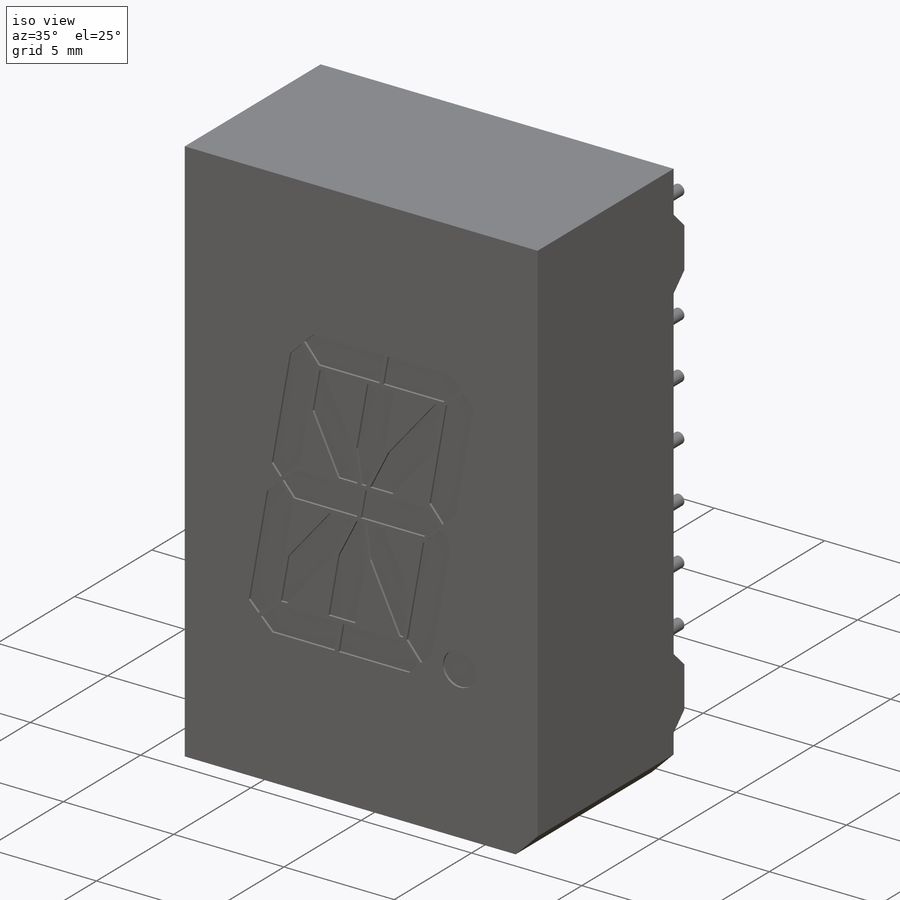
[diagram: iso view]
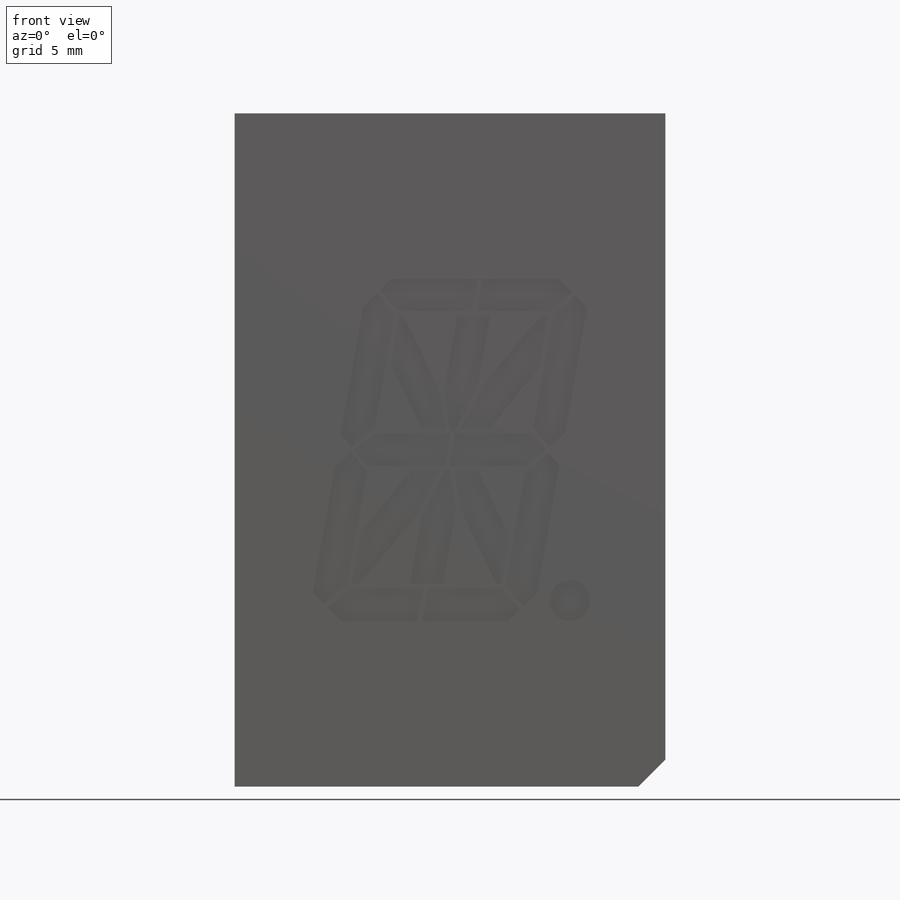
[diagram: front view]
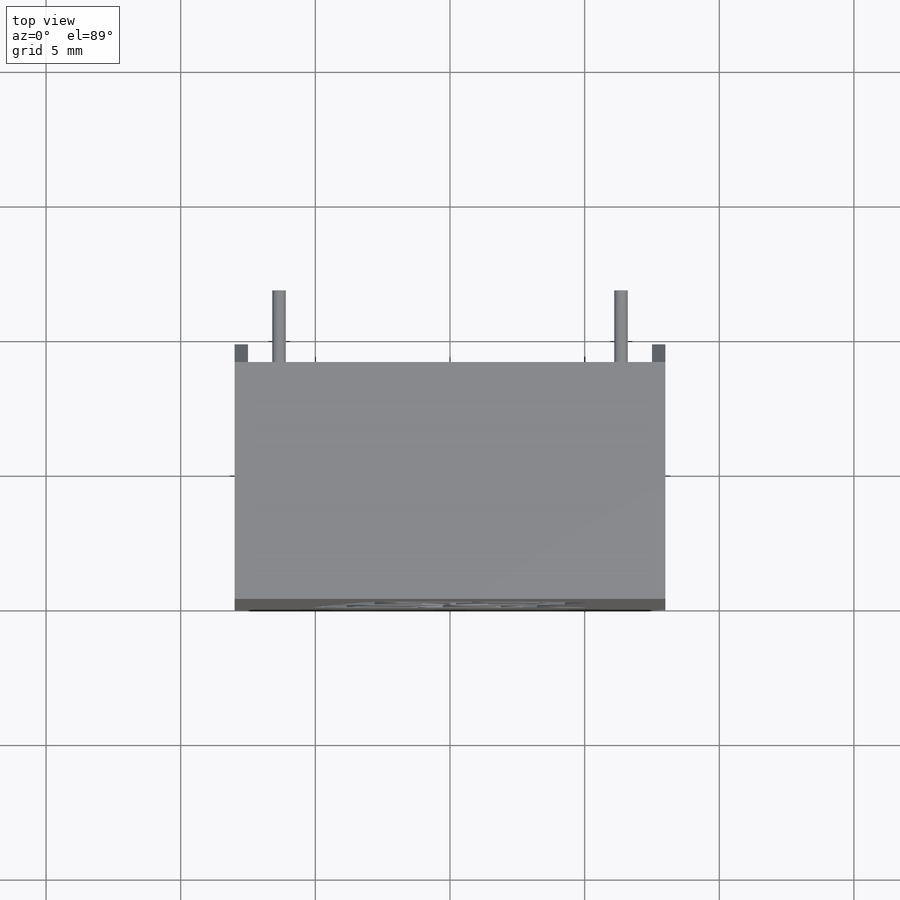
[diagram: top view]
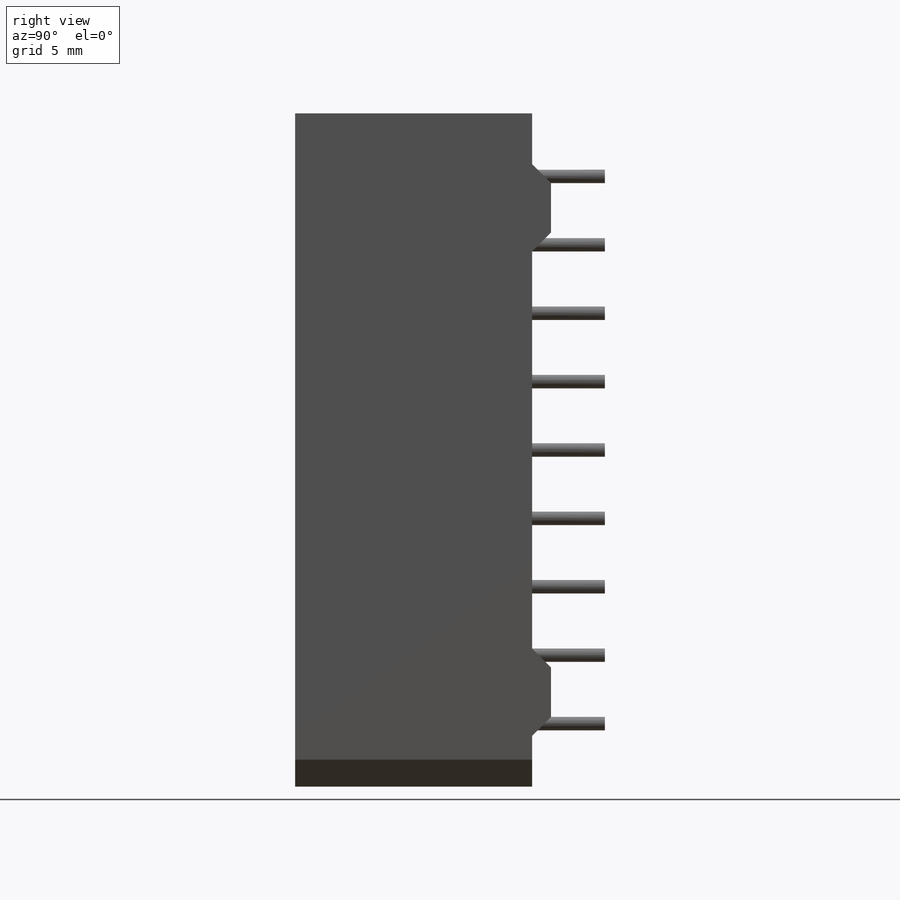
[diagram: right view]
SOLIDWORKS PART (.sldprt)
format: sldprt  version: not decoded by parser v0  size: 643,072 bytes
history: native  units: mm
features: sketch x7, extrude x4, cut_extrude x2, material x1, dome x1, pattern_linear x1, plane x1 (+12 scaffold rows collapsed)
feature tree (29):
  scaffold x12  (default folders/planes/origin — collapsed)
  material  "Material <not specified>"
  sketch  "Sketch1"  dims[c1.D1=16.0mm c1.D2=25.0mm c1.D3=8.0mm c1.D4=12.5mm c1.D5=45.0deg c2.D5=1.0mm c2.D6=1.0mm]
  extrude  "Extrude1"  Depth=8.8mm
  sketch  "Sketch2"  dims[c1.D1=2.54mm c1.D2=0.7mm c1.D3=0.35mm c1.D4=~0.810491mm c2.D4=45.0deg c2.D5=~0.684556mm c3.D5=45.0deg c3.D6=9.0mm]
  extrude  "Extrude2"  Depth=0.5mm
  sketch  "Sketch3"  dims[D1=0.0mm D2=0.0mm]
  extrude  "Extrude3"  Depth=0.5mm
  sketch  "Sketch4"  dims[D1=0.5mm D2=0.5mm D3=0.5mm]
  cut_extrude  "Cut-Extrude1"  Depth=0.5mm
  dome  "Dome1"
  sketch  "Sketch5"  dims[c1.D40=~0.628576mm c1.D1=12.7mm c1.D2=6.35mm c1.D3=12.7mm c2.D3=80.0deg c2.D4=8.2mm c2.D5=1.2mm c2.D6=1.2mm c2.D7=1.2mm c2.D8=1.2mm c2.D9=0.17mm c2.D10=0.17mm c2.D11=0.13mm c2.D12=0.13mm c2.D13=~0.134473mm c3.D13=45.0deg c4.D13=1.5mm c5.D13=45.0deg c6.D13=1.5mm c6.D14=1.5mm c7.D14=45.0deg c7.D15=1.5mm c7.D16=1.5mm c8.D16=45.0deg c8.D17=1.5mm c8.D18=~1.370333mm c9.D18=45.0deg c9.D19=1.5mm c9.D20=~1.124095mm c10.D20=45.0deg c10.D21=0.17mm c10.D22=~3.867768mm c11.D22=35.0deg c11.D23=~3.867768mm c12.D23=55.0deg c12.D24=0.17mm c12.D25=~1.53649mm c12.D22=1.2mm c13.D23=~5.997254mm c14.D23=~139.545154deg c14.D22=1.2mm c15.D23=~16.906852mm c16.D23=100.0deg c16.D25=0.17mm c16.D26=0.085mm c17.D25=0.17mm c17.D27=1.2mm c18.D27=~0.15038deg c19.D27=0.17mm c19.D28=0.17mm c19.D29=1.2mm c19.D30=0.6mm c19.D31=1.2mm c19.D32=0.6mm c19.D33=0.17mm c19.D34=0.17mm c19.D35=0.17mm c19.D36=0.17mm c19.D37=0.085mm c20.D28=1.2mm c20.D38=0.6mm c20.D39=0.17mm c20.D40=0.17mm c20.D41=0.17mm c20.D42=~0.448731mm c20.D43=~0.436186mm c21.D42=0.17mm c21.D43=0.085mm c21.D40=0.75mm c21.D44=~1.254143mm]
  cut_extrude  "Cut-Extrude2"  Depth=0.1mm
  sketch  "Sketch6"  dims[D1=12.7mm D2=6.35mm]
  extrude  "Extrude4"  Depth=2mm
  pattern_linear  "LPattern1"  Count1=5 Count2=5 Spacing1=2.54mm Spacing2=2.54mm
  plane  "Board Plane"  Offset=9.5mm
  sketch  "Component_Outline"
decode coverage: 13 of 15 modeling features carry decoded parameters
note: ~ marks probable driven/reference dimensions
note: suppression state not decoded; provenance and decode notes live in map.json
